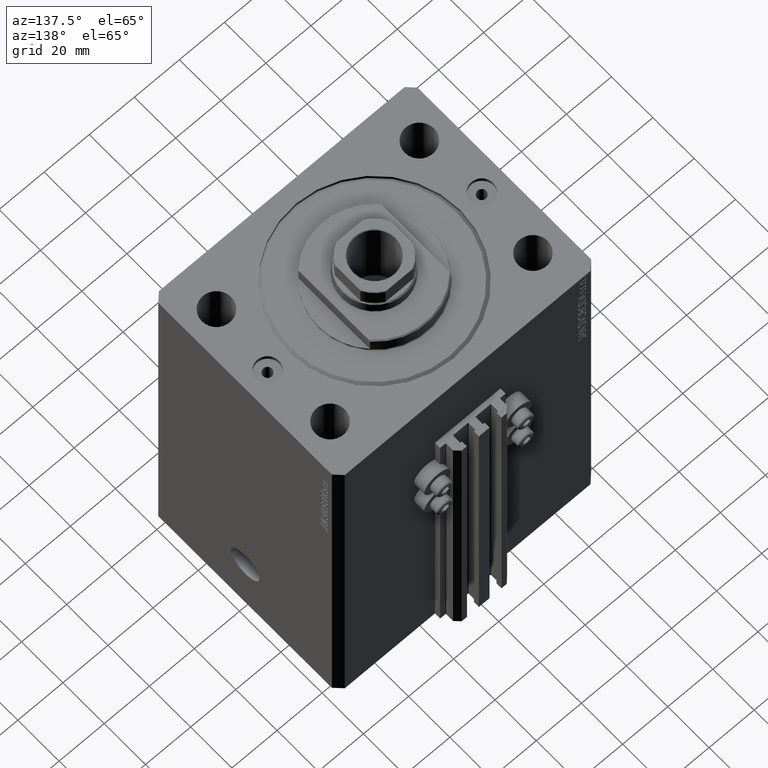
[diagram: clean part render]
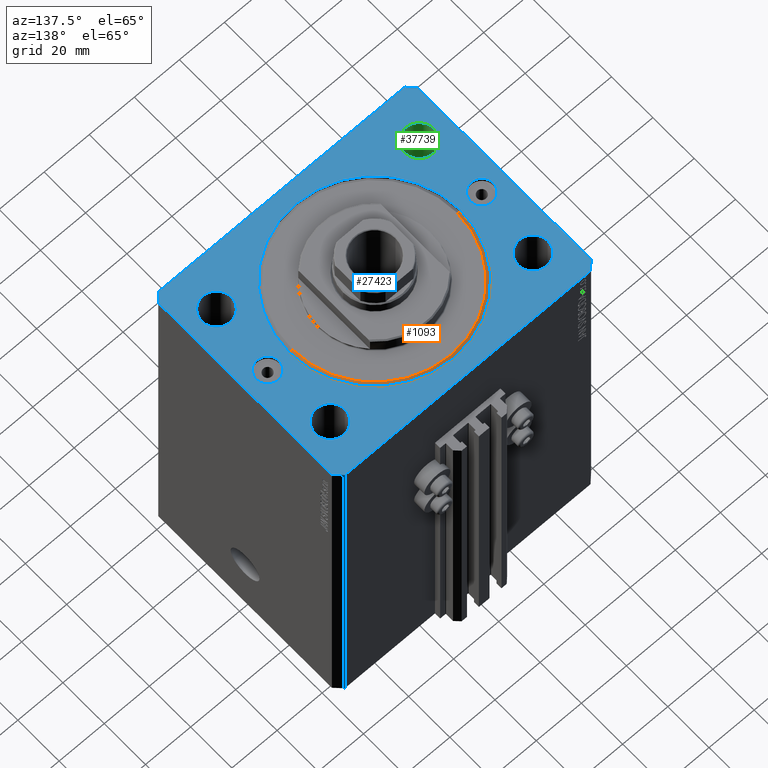
[diagram: same view with three faces highlighted in distinct colors, each labeled with its STEP entity id]
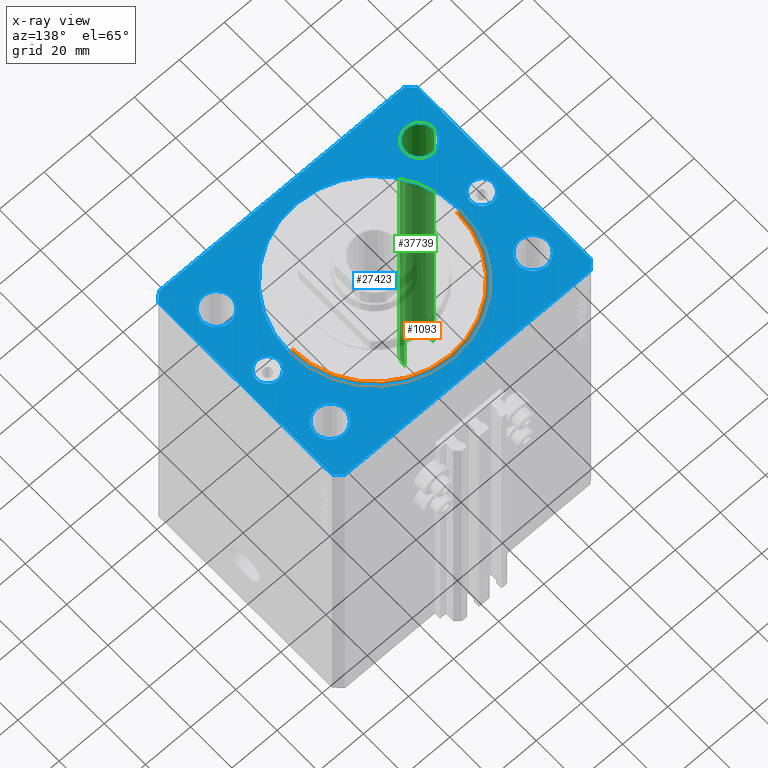
[diagram: x-ray of the same camera — body ghosted, the three highlighted faces saturated]
A machine part, auxiliary view with three faces highlighted in distinct colors.
The next image is the same camera in x-ray (body ghosted, the three faces saturated) — at least one of them is partly hidden behind the body in this view.
Their STEP definitions:

[orange] entity #1093 — the highlighted conical surface has half-angle 45 deg.
#1093 = ADVANCED_FACE ( 'NONE', ( #6289 ), #15598, .T. ) ;
#1545 = LINE ( 'NONE', #23691, #25750 ) ;
#2882 = EDGE_CURVE ( 'NONE', #32371, #16015, #32445, .T. ) ;
#3122 = ORIENTED_EDGE ( 'NONE', *, *, #7338, .F. ) ;
#3654 = CARTESIAN_POINT ( 'NONE',  ( 0.000000000000000000, 0.000000000000000000, 1.499999999999987566 ) ) ;
#3705 = ORIENTED_EDGE ( 'NONE', *, *, #2882, .F. ) ;
#5900 = DIRECTION ( 'NONE',  ( -0.7071067811865507924, 8.659560562354972301E-17, 0.7071067811865441310 ) ) ;
#6289 = FACE_OUTER_BOUND ( 'NONE', #19420, .T. ) ;
#7338 = EDGE_CURVE ( 'NONE', #9294, #22922, #41621, .T. ) ;
#9294 = VERTEX_POINT ( 'NONE', #18986 ) ;
#9437 = CARTESIAN_POINT ( 'NONE',  ( 0.000000000000000000, 0.000000000000000000, 1.499999999999987566 ) ) ;
#10179 = CARTESIAN_POINT ( 'NONE',  ( -38.00000000000000000, 4.653657836759941152E-15, 1.499999999999987566 ) ) ;
#10868 = CARTESIAN_POINT ( 'NONE',  ( -38.00000000000000000, 0.000000000000000000, 1.499999999999987566 ) ) ;
#12619 = DIRECTION ( 'NONE',  ( -0.000000000000000000, -0.000000000000000000, -1.000000000000000000 ) ) ;
#13279 = LINE ( 'NONE', #10179, #16873 ) ;
#15598 = CONICAL_SURFACE ( 'NONE', #30852, 38.00000000000000000, 0.7853981633974529419 ) ;
#16015 = VERTEX_POINT ( 'NONE', #10868 ) ;
#16061 = DIRECTION ( 'NONE',  ( 0.7071067811865507924, 0.000000000000000000, 0.7071067811865441310 ) ) ;
#16358 = DIRECTION ( 'NONE',  ( -0.000000000000000000, -0.000000000000000000, 1.000000000000000000 ) ) ;
#16873 = VECTOR ( 'NONE', #5900, 1000.000000000000114 ) ;
#18140 = EDGE_CURVE ( 'NONE', #9294, #16015, #13279, .T. ) ;
#18986 = CARTESIAN_POINT ( 'NONE',  ( -36.50000000000000000, 4.561809326823889791E-15, 0.000000000000000000 ) ) ;
#19169 = ORIENTED_EDGE ( 'NONE', *, *, #18140, .T. ) ;
#19420 = EDGE_LOOP ( 'NONE', ( #3122, #19169, #3705, #36980 ) ) ;
#20983 = AXIS2_PLACEMENT_3D ( 'NONE', #9437, #16358, #23513 ) ;
#21299 = DIRECTION ( 'NONE',  ( -0.000000000000000000, -0.000000000000000000, 1.000000000000000000 ) ) ;
#22916 = CARTESIAN_POINT ( 'NONE',  ( 36.50000000000000000, 0.000000000000000000, 0.000000000000000000 ) ) ;
#22922 = VERTEX_POINT ( 'NONE', #22916 ) ;
#23373 = CARTESIAN_POINT ( 'NONE',  ( 0.000000000000000000, 0.000000000000000000, 0.000000000000000000 ) ) ;
#23513 = DIRECTION ( 'NONE',  ( 1.000000000000000000, 0.000000000000000000, 0.000000000000000000 ) ) ;
#23691 = CARTESIAN_POINT ( 'NONE',  ( 38.00000000000000000, 0.000000000000000000, 1.499999999999987566 ) ) ;
#25750 = VECTOR ( 'NONE', #16061, 1000.000000000000114 ) ;
#25767 = CARTESIAN_POINT ( 'NONE',  ( 38.00000000000000000, 4.653657836759941941E-15, 1.499999999999987566 ) ) ;
#30852 = AXIS2_PLACEMENT_3D ( 'NONE', #3654, #21299, #39707 ) ;
#31514 = DIRECTION ( 'NONE',  ( 1.000000000000000000, 0.000000000000000000, 0.000000000000000000 ) ) ;
#31975 = EDGE_CURVE ( 'NONE', #22922, #32371, #1545, .T. ) ;
#32371 = VERTEX_POINT ( 'NONE', #25767 ) ;
#32445 = CIRCLE ( 'NONE', #20983, 38.00000000000000000 ) ;
#36980 = ORIENTED_EDGE ( 'NONE', *, *, #31975, .F. ) ;
#39707 = DIRECTION ( 'NONE',  ( 1.000000000000000000, 0.000000000000000000, 0.000000000000000000 ) ) ;
#41621 = CIRCLE ( 'NONE', #46987, 36.50000000000000000 ) ;
#46987 = AXIS2_PLACEMENT_3D ( 'NONE', #23373, #12619, #31514 ) ;

[blue] entity #27423 — the highlighted planar face has unit normal (0, 0, 1).
#260 = CARTESIAN_POINT ( 'NONE',  ( 54.50000000000000711, -44.99999999999998579, 0.000000000000000000 ) ) ;
#617 = CARTESIAN_POINT ( 'NONE',  ( 57.50000000000055422, 41.99999999999997868, 0.000000000000000000 ) ) ;
#871 = CARTESIAN_POINT ( 'NONE',  ( -47.50000000000000000, 0.000000000000000000, 0.000000000000000000 ) ) ;
#1354 = CIRCLE ( 'NONE', #24937, 4.999999999999997335 ) ;
#1471 = EDGE_CURVE ( 'NONE', #11173, #12547, #32706, .T. ) ;
#1954 = EDGE_LOOP ( 'NONE', ( #24005, #30997, #29475, #32439, #8740, #9249, #38510, #23436 ) ) ;
#2252 = FACE_BOUND ( 'NONE', #14986, .T. ) ;
#3496 = DIRECTION ( 'NONE',  ( -0.7071067811865483499, -0.7071067811865466846, 0.000000000000000000 ) ) ;
#3679 = EDGE_LOOP ( 'NONE', ( #5912, #40701 ) ) ;
#3830 = VERTEX_POINT ( 'NONE', #35737 ) ;
#3963 = CIRCLE ( 'NONE', #37524, 6.499999999999999112 ) ;
#4005 = VERTEX_POINT ( 'NONE', #8004 ) ;
#4127 = AXIS2_PLACEMENT_3D ( 'NONE', #17743, #13696, #35442 ) ;
#4447 = CARTESIAN_POINT ( 'NONE',  ( -42.50000000000000000, 0.000000000000000000, 0.000000000000000000 ) ) ;
#4514 = CARTESIAN_POINT ( 'NONE',  ( 57.50000000000055422, 41.99999999999997868, 0.000000000000000000 ) ) ;
#4573 = CARTESIAN_POINT ( 'NONE',  ( -38.50000000000000000, 27.49999999999999645, 0.000000000000000000 ) ) ;
#4659 = VERTEX_POINT ( 'NONE', #4447 ) ;
#4693 = DIRECTION ( 'NONE',  ( 0.000000000000000000, 0.000000000000000000, 1.000000000000000000 ) ) ;
#4840 = DIRECTION ( 'NONE',  ( 0.000000000000000000, 0.000000000000000000, 1.000000000000000000 ) ) ;
#5227 = EDGE_CURVE ( 'NONE', #34583, #4005, #45474, .T. ) ;
#5359 = DIRECTION ( 'NONE',  ( 0.000000000000000000, 0.000000000000000000, 1.000000000000000000 ) ) ;
#5388 = CARTESIAN_POINT ( 'NONE',  ( -44.99999999999998579, -27.50000000000000355, 0.000000000000000000 ) ) ;
#5861 = ORIENTED_EDGE ( 'NONE', *, *, #35315, .F. ) ;
#5912 = ORIENTED_EDGE ( 'NONE', *, *, #9299, .F. ) ;
#6148 = ORIENTED_EDGE ( 'NONE', *, *, #32860, .F. ) ;
#6475 = CARTESIAN_POINT ( 'NONE',  ( 38.50000000000000000, 27.49999999999999289, 0.000000000000000000 ) ) ;
#6926 = CARTESIAN_POINT ( 'NONE',  ( 57.50000000000000711, -41.99999999999998579, 0.000000000000000000 ) ) ;
#7218 = DIRECTION ( 'NONE',  ( 1.000000000000000000, 0.000000000000000000, 0.000000000000000000 ) ) ;
#7731 = CIRCLE ( 'NONE', #25269, 38.00000000000000000 ) ;
#8004 = CARTESIAN_POINT ( 'NONE',  ( 42.50000000000000000, 6.123233995736762338E-16, 0.000000000000000000 ) ) ;
#8076 = DIRECTION ( 'NONE',  ( 0.000000000000000000, 0.000000000000000000, 1.000000000000000000 ) ) ;
#8198 = CARTESIAN_POINT ( 'NONE',  ( -51.50000000000000000, 27.49999999999999645, 0.000000000000000000 ) ) ;
#8244 = DIRECTION ( 'NONE',  ( 1.000000000000000000, 0.000000000000000000, 0.000000000000000000 ) ) ;
#8329 = CIRCLE ( 'NONE', #29048, 38.00000000000000000 ) ;
#8573 = CARTESIAN_POINT ( 'NONE',  ( -38.00000000000000000, 4.653657836759941941E-15, 0.000000000000000000 ) ) ;
#8740 = ORIENTED_EDGE ( 'NONE', *, *, #31580, .T. ) ;
#8788 = LINE ( 'NONE', #39840, #16939 ) ;
#8961 = ORIENTED_EDGE ( 'NONE', *, *, #46390, .F. ) ;
#9249 = ORIENTED_EDGE ( 'NONE', *, *, #1471, .T. ) ;
#9299 = EDGE_CURVE ( 'NONE', #39109, #39535, #22580, .T. ) ;
#9390 = FACE_BOUND ( 'NONE', #43974, .T. ) ;
#9433 = VERTEX_POINT ( 'NONE', #4573 ) ;
#9517 = LINE ( 'NONE', #46341, #19783 ) ;
#9625 = FACE_BOUND ( 'NONE', #9767, .T. ) ;
#9767 = EDGE_LOOP ( 'NONE', ( #14653, #8961 ) ) ;
#10392 = VERTEX_POINT ( 'NONE', #35705 ) ;
#10570 = CARTESIAN_POINT ( 'NONE',  ( 0.000000000000000000, 0.000000000000000000, 0.000000000000000000 ) ) ;
#10778 = CARTESIAN_POINT ( 'NONE',  ( 57.50000000000000711, -41.99999999999998579, 0.000000000000000000 ) ) ;
#10805 = DIRECTION ( 'NONE',  ( 1.000000000000000000, 0.000000000000000000, 0.000000000000000000 ) ) ;
#11173 = VERTEX_POINT ( 'NONE', #12310 ) ;
#11377 = VERTEX_POINT ( 'NONE', #617 ) ;
#11646 = ORIENTED_EDGE ( 'NONE', *, *, #39673, .F. ) ;
#11678 = CARTESIAN_POINT ( 'NONE',  ( 44.99999999999998579, -27.50000000000000355, 0.000000000000000000 ) ) ;
#11789 = EDGE_CURVE ( 'NONE', #4005, #34583, #1354, .T. ) ;
#12038 = DIRECTION ( 'NONE',  ( 0.000000000000000000, 0.000000000000000000, 1.000000000000000000 ) ) ;
#12086 = DIRECTION ( 'NONE',  ( 0.000000000000000000, 0.000000000000000000, 1.000000000000000000 ) ) ;
#12121 = CARTESIAN_POINT ( 'NONE',  ( 0.000000000000000000, 0.000000000000000000, 0.000000000000000000 ) ) ;
#12310 = CARTESIAN_POINT ( 'NONE',  ( 54.50000000000000711, -44.99999999999998579, 0.000000000000000000 ) ) ;
#12495 = FACE_BOUND ( 'NONE', #24103, .T. ) ;
#12547 = VERTEX_POINT ( 'NONE', #6926 ) ;
#12719 = AXIS2_PLACEMENT_3D ( 'NONE', #11678, #32965, #37479 ) ;
#12724 = FACE_OUTER_BOUND ( 'NONE', #1954, .T. ) ;
#13038 = DIRECTION ( 'NONE',  ( 0.000000000000000000, 0.000000000000000000, 1.000000000000000000 ) ) ;
#13080 = EDGE_CURVE ( 'NONE', #20600, #9433, #23429, .T. ) ;
#13100 = VECTOR ( 'NONE', #32757, 1000.000000000000000 ) ;
#13193 = EDGE_CURVE ( 'NONE', #11377, #46303, #43724, .T. ) ;
#13456 = CARTESIAN_POINT ( 'NONE',  ( -44.99999999999998579, -27.50000000000000355, 0.000000000000000000 ) ) ;
#13696 = DIRECTION ( 'NONE',  ( 0.000000000000000000, 0.000000000000000000, 1.000000000000000000 ) ) ;
#13823 = CIRCLE ( 'NONE', #20682, 6.499999999999999112 ) ;
#14546 = DIRECTION ( 'NONE',  ( 0.7071067811865483499, 0.7071067811865466846, 0.000000000000000000 ) ) ;
#14653 = ORIENTED_EDGE ( 'NONE', *, *, #42385, .F. ) ;
#14838 = DIRECTION ( 'NONE',  ( 0.000000000000000000, 0.000000000000000000, 1.000000000000000000 ) ) ;
#14986 = EDGE_LOOP ( 'NONE', ( #11646, #42813 ) ) ;
#15179 = AXIS2_PLACEMENT_3D ( 'NONE', #871, #12038, #26852 ) ;
#15628 = CARTESIAN_POINT ( 'NONE',  ( -57.49999999999998579, 42.00000000000000711, 0.000000000000000000 ) ) ;
#15895 = DIRECTION ( 'NONE',  ( 1.000000000000000000, 0.000000000000000000, 0.000000000000000000 ) ) ;
#16072 = FACE_BOUND ( 'NONE', #17686, .T. ) ;
#16616 = CARTESIAN_POINT ( 'NONE',  ( 44.99999999999998579, -27.50000000000000355, 0.000000000000000000 ) ) ;
#16930 = ORIENTED_EDGE ( 'NONE', *, *, #18196, .F. ) ;
#16939 = VECTOR ( 'NONE', #28135, 1000.000000000000000 ) ;
#17095 = DIRECTION ( 'NONE',  ( 1.000000000000000000, 0.000000000000000000, 0.000000000000000000 ) ) ;
#17378 = AXIS2_PLACEMENT_3D ( 'NONE', #18418, #14838, #29417 ) ;
#17397 = CARTESIAN_POINT ( 'NONE',  ( -57.49999999999998579, 42.00000000000000711, 0.000000000000000000 ) ) ;
#17686 = EDGE_LOOP ( 'NONE', ( #5861, #6148 ) ) ;
#17743 = CARTESIAN_POINT ( 'NONE',  ( 45.00000000000000000, 27.49999999999999289, 0.000000000000000000 ) ) ;
#17989 = CARTESIAN_POINT ( 'NONE',  ( 47.50000000000000000, 0.000000000000000000, 0.000000000000000000 ) ) ;
#18157 = CIRCLE ( 'NONE', #21935, 4.999999999999997335 ) ;
#18185 = EDGE_LOOP ( 'NONE', ( #16930, #21818 ) ) ;
#18196 = EDGE_CURVE ( 'NONE', #40280, #39150, #13823, .T. ) ;
#18418 = CARTESIAN_POINT ( 'NONE',  ( -45.00000000000000000, 27.49999999999999645, 0.000000000000000000 ) ) ;
#18491 = CARTESIAN_POINT ( 'NONE',  ( -54.49999999999999289, 45.00000000000000000, 0.000000000000000000 ) ) ;
#19057 = CIRCLE ( 'NONE', #29753, 6.499999999999999112 ) ;
#19270 = EDGE_CURVE ( 'NONE', #12547, #11377, #40163, .T. ) ;
#19644 = EDGE_CURVE ( 'NONE', #9433, #20600, #3963, .T. ) ;
#19783 = VECTOR ( 'NONE', #20762, 1000.000000000000114 ) ;
#19899 = DIRECTION ( 'NONE',  ( 1.000000000000000000, 0.000000000000000000, -0.000000000000000000 ) ) ;
#19915 = AXIS2_PLACEMENT_3D ( 'NONE', #13456, #12086, #15895 ) ;
#20097 = CARTESIAN_POINT ( 'NONE',  ( -51.49999999999998579, -27.50000000000000355, 0.000000000000000000 ) ) ;
#20182 = VECTOR ( 'NONE', #14546, 1000.000000000000000 ) ;
#20497 = ORIENTED_EDGE ( 'NONE', *, *, #11789, .T. ) ;
#20600 = VERTEX_POINT ( 'NONE', #8198 ) ;
#20682 = AXIS2_PLACEMENT_3D ( 'NONE', #16616, #13038, #17095 ) ;
#20762 = DIRECTION ( 'NONE',  ( 0.7071067811865491270, -0.7071067811865459074, 0.000000000000000000 ) ) ;
#21320 = DIRECTION ( 'NONE',  ( 0.000000000000000000, 0.000000000000000000, 1.000000000000000000 ) ) ;
#21818 = ORIENTED_EDGE ( 'NONE', *, *, #29751, .F. ) ;
#21889 = CARTESIAN_POINT ( 'NONE',  ( -57.50000000000000711, -42.00000000000000711, 0.000000000000000000 ) ) ;
#21935 = AXIS2_PLACEMENT_3D ( 'NONE', #38487, #4840, #45671 ) ;
#22282 = CARTESIAN_POINT ( 'NONE',  ( 38.49999999999998579, -27.50000000000000355, 0.000000000000000000 ) ) ;
#22580 = CIRCLE ( 'NONE', #37093, 6.499999999999999112 ) ;
#22798 = DIRECTION ( 'NONE',  ( 1.000000000000000000, 0.000000000000000000, 0.000000000000000000 ) ) ;
#23429 = CIRCLE ( 'NONE', #17378, 6.499999999999999112 ) ;
#23436 = ORIENTED_EDGE ( 'NONE', *, *, #13193, .T. ) ;
#23492 = DIRECTION ( 'NONE',  ( -2.478176394252581141E-16, -1.000000000000000000, 0.000000000000000000 ) ) ;
#24005 = ORIENTED_EDGE ( 'NONE', *, *, #26151, .T. ) ;
#24103 = EDGE_LOOP ( 'NONE', ( #46949, #20497 ) ) ;
#24219 = VECTOR ( 'NONE', #43485, 1000.000000000000000 ) ;
#24387 = VERTEX_POINT ( 'NONE', #17397 ) ;
#24937 = AXIS2_PLACEMENT_3D ( 'NONE', #17989, #46474, #47177 ) ;
#25269 = AXIS2_PLACEMENT_3D ( 'NONE', #10570, #21320, #10805 ) ;
#25702 = LINE ( 'NONE', #40298, #30308 ) ;
#26151 = EDGE_CURVE ( 'NONE', #46303, #10392, #8788, .T. ) ;
#26250 = CARTESIAN_POINT ( 'NONE',  ( 38.00000000000000000, 0.000000000000000000, 0.000000000000000000 ) ) ;
#26695 = DIRECTION ( 'NONE',  ( 0.000000000000000000, 0.000000000000000000, 1.000000000000000000 ) ) ;
#26852 = DIRECTION ( 'NONE',  ( 1.000000000000000000, 0.000000000000000000, 0.000000000000000000 ) ) ;
#27423 = ADVANCED_FACE ( 'NONE', ( #12724, #9390, #38316, #34942, #9625, #2252, #16072, #12495 ), #45266, .T. ) ;
#27424 = VECTOR ( 'NONE', #3496, 1000.000000000000000 ) ;
#27813 = CARTESIAN_POINT ( 'NONE',  ( -38.49999999999998579, -27.50000000000000355, 0.000000000000000000 ) ) ;
#28135 = DIRECTION ( 'NONE',  ( -1.000000000000000000, -2.546383084002638829E-16, 0.000000000000000000 ) ) ;
#28555 = LINE ( 'NONE', #18491, #27424 ) ;
#28560 = EDGE_CURVE ( 'NONE', #39535, #39109, #29273, .T. ) ;
#28775 = CIRCLE ( 'NONE', #12719, 6.499999999999999112 ) ;
#29048 = AXIS2_PLACEMENT_3D ( 'NONE', #12121, #26695, #40584 ) ;
#29273 = CIRCLE ( 'NONE', #4127, 6.499999999999999112 ) ;
#29354 = CARTESIAN_POINT ( 'NONE',  ( -45.00000000000000000, 27.49999999999999645, 0.000000000000000000 ) ) ;
#29417 = DIRECTION ( 'NONE',  ( 1.000000000000000000, 0.000000000000000000, 0.000000000000000000 ) ) ;
#29475 = ORIENTED_EDGE ( 'NONE', *, *, #42286, .T. ) ;
#29583 = DIRECTION ( 'NONE',  ( 1.000000000000000000, 0.000000000000000000, 0.000000000000000000 ) ) ;
#29751 = EDGE_CURVE ( 'NONE', #39150, #40280, #28775, .T. ) ;
#29753 = AXIS2_PLACEMENT_3D ( 'NONE', #5388, #41702, #8244 ) ;
#29836 = VERTEX_POINT ( 'NONE', #41323 ) ;
#30308 = VECTOR ( 'NONE', #41009, 1000.000000000000000 ) ;
#30997 = ORIENTED_EDGE ( 'NONE', *, *, #40991, .T. ) ;
#31369 = CARTESIAN_POINT ( 'NONE',  ( 0.000000000000000000, 0.000000000000000000, 0.000000000000000000 ) ) ;
#31580 = EDGE_CURVE ( 'NONE', #29836, #11173, #25702, .T. ) ;
#31592 = ORIENTED_EDGE ( 'NONE', *, *, #13080, .F. ) ;
#31646 = CARTESIAN_POINT ( 'NONE',  ( 51.50000000000000000, 27.49999999999999289, 0.000000000000000000 ) ) ;
#32058 = CARTESIAN_POINT ( 'NONE',  ( 47.50000000000000000, 0.000000000000000000, 0.000000000000000000 ) ) ;
#32152 = CIRCLE ( 'NONE', #19915, 6.499999999999999112 ) ;
#32439 = ORIENTED_EDGE ( 'NONE', *, *, #37074, .T. ) ;
#32706 = LINE ( 'NONE', #260, #20182 ) ;
#32757 = DIRECTION ( 'NONE',  ( 6.443258625056715108E-15, 1.000000000000000000, 0.000000000000000000 ) ) ;
#32860 = EDGE_CURVE ( 'NONE', #3830, #4659, #18157, .T. ) ;
#32965 = DIRECTION ( 'NONE',  ( 0.000000000000000000, 0.000000000000000000, 1.000000000000000000 ) ) ;
#33182 = VERTEX_POINT ( 'NONE', #8573 ) ;
#34583 = VERTEX_POINT ( 'NONE', #44280 ) ;
#34766 = VERTEX_POINT ( 'NONE', #20097 ) ;
#34942 = FACE_BOUND ( 'NONE', #18185, .T. ) ;
#35315 = EDGE_CURVE ( 'NONE', #4659, #3830, #37284, .T. ) ;
#35442 = DIRECTION ( 'NONE',  ( 1.000000000000000000, 0.000000000000000000, 0.000000000000000000 ) ) ;
#35705 = CARTESIAN_POINT ( 'NONE',  ( -54.49999999999999289, 45.00000000000000000, 0.000000000000000000 ) ) ;
#35737 = CARTESIAN_POINT ( 'NONE',  ( -52.50000000000000000, 6.123233995736762338E-16, 0.000000000000000000 ) ) ;
#37074 = EDGE_CURVE ( 'NONE', #46901, #29836, #9517, .T. ) ;
#37093 = AXIS2_PLACEMENT_3D ( 'NONE', #41935, #4693, #22798 ) ;
#37284 = CIRCLE ( 'NONE', #15179, 4.999999999999997335 ) ;
#37479 = DIRECTION ( 'NONE',  ( 1.000000000000000000, 0.000000000000000000, 0.000000000000000000 ) ) ;
#37524 = AXIS2_PLACEMENT_3D ( 'NONE', #29354, #8076, #29583 ) ;
#38290 = VERTEX_POINT ( 'NONE', #27813 ) ;
#38316 = FACE_BOUND ( 'NONE', #3679, .T. ) ;
#38487 = CARTESIAN_POINT ( 'NONE',  ( -47.50000000000000000, 0.000000000000000000, 0.000000000000000000 ) ) ;
#38510 = ORIENTED_EDGE ( 'NONE', *, *, #19270, .T. ) ;
#39109 = VERTEX_POINT ( 'NONE', #31646 ) ;
#39150 = VERTEX_POINT ( 'NONE', #22282 ) ;
#39535 = VERTEX_POINT ( 'NONE', #6475 ) ;
#39673 = EDGE_CURVE ( 'NONE', #46791, #33182, #8329, .T. ) ;
#39840 = CARTESIAN_POINT ( 'NONE',  ( 54.50000000000059686, 45.00000000000002842, 0.000000000000000000 ) ) ;
#40083 = CARTESIAN_POINT ( 'NONE',  ( 54.50000000000059686, 45.00000000000002842, 0.000000000000000000 ) ) ;
#40163 = LINE ( 'NONE', #10778, #13100 ) ;
#40280 = VERTEX_POINT ( 'NONE', #40359 ) ;
#40298 = CARTESIAN_POINT ( 'NONE',  ( -54.50000000000000711, -45.00000000000000000, 0.000000000000000000 ) ) ;
#40359 = CARTESIAN_POINT ( 'NONE',  ( 51.49999999999998579, -27.50000000000000355, 0.000000000000000000 ) ) ;
#40584 = DIRECTION ( 'NONE',  ( 1.000000000000000000, 0.000000000000000000, 0.000000000000000000 ) ) ;
#40701 = ORIENTED_EDGE ( 'NONE', *, *, #28560, .F. ) ;
#40991 = EDGE_CURVE ( 'NONE', #10392, #24387, #28555, .T. ) ;
#41009 = DIRECTION ( 'NONE',  ( 1.000000000000000000, 1.273191542001326317E-16, 0.000000000000000000 ) ) ;
#41243 = ORIENTED_EDGE ( 'NONE', *, *, #19644, .F. ) ;
#41323 = CARTESIAN_POINT ( 'NONE',  ( -54.50000000000000711, -45.00000000000000000, 0.000000000000000000 ) ) ;
#41686 = AXIS2_PLACEMENT_3D ( 'NONE', #32058, #46658, #7218 ) ;
#41702 = DIRECTION ( 'NONE',  ( 0.000000000000000000, 0.000000000000000000, 1.000000000000000000 ) ) ;
#41935 = CARTESIAN_POINT ( 'NONE',  ( 45.00000000000000000, 27.49999999999999289, 0.000000000000000000 ) ) ;
#41971 = VECTOR ( 'NONE', #23492, 1000.000000000000000 ) ;
#42286 = EDGE_CURVE ( 'NONE', #24387, #46901, #45056, .T. ) ;
#42385 = EDGE_CURVE ( 'NONE', #38290, #34766, #19057, .T. ) ;
#42813 = ORIENTED_EDGE ( 'NONE', *, *, #45576, .F. ) ;
#43485 = DIRECTION ( 'NONE',  ( -0.7071067811865369146, 0.7071067811865581199, 0.000000000000000000 ) ) ;
#43724 = LINE ( 'NONE', #4514, #24219 ) ;
#43760 = AXIS2_PLACEMENT_3D ( 'NONE', #31369, #5359, #19899 ) ;
#43974 = EDGE_LOOP ( 'NONE', ( #41243, #31592 ) ) ;
#44280 = CARTESIAN_POINT ( 'NONE',  ( 52.50000000000000000, 0.000000000000000000, 0.000000000000000000 ) ) ;
#45056 = LINE ( 'NONE', #15628, #41971 ) ;
#45266 = PLANE ( 'NONE',  #43760 ) ;
#45474 = CIRCLE ( 'NONE', #41686, 4.999999999999997335 ) ;
#45576 = EDGE_CURVE ( 'NONE', #33182, #46791, #7731, .T. ) ;
#45671 = DIRECTION ( 'NONE',  ( 1.000000000000000000, 0.000000000000000000, 0.000000000000000000 ) ) ;
#46303 = VERTEX_POINT ( 'NONE', #40083 ) ;
#46341 = CARTESIAN_POINT ( 'NONE',  ( -57.50000000000000711, -42.00000000000000711, 0.000000000000000000 ) ) ;
#46390 = EDGE_CURVE ( 'NONE', #34766, #38290, #32152, .T. ) ;
#46474 = DIRECTION ( 'NONE',  ( 0.000000000000000000, -0.000000000000000000, -1.000000000000000000 ) ) ;
#46658 = DIRECTION ( 'NONE',  ( 0.000000000000000000, -0.000000000000000000, -1.000000000000000000 ) ) ;
#46791 = VERTEX_POINT ( 'NONE', #26250 ) ;
#46901 = VERTEX_POINT ( 'NONE', #21889 ) ;
#46949 = ORIENTED_EDGE ( 'NONE', *, *, #5227, .T. ) ;
#47177 = DIRECTION ( 'NONE',  ( 1.000000000000000000, 0.000000000000000000, 0.000000000000000000 ) ) ;

[green] entity #37739 — the highlighted cylindrical surface (edge-blend (fillet) strip) has radius 6.5 mm, axis along (0, 0, 1).
#1613 = DIRECTION ( 'NONE',  ( -0.000000000000000000, -0.000000000000000000, -1.000000000000000000 ) ) ;
#3288 = ORIENTED_EDGE ( 'NONE', *, *, #14535, .F. ) ;
#4056 = CIRCLE ( 'NONE', #33793, 6.499999999999999112 ) ;
#7992 = CARTESIAN_POINT ( 'NONE',  ( -51.49999999999998579, -27.50000000000000355, -183.3847763108502420 ) ) ;
#9792 = VERTEX_POINT ( 'NONE', #40820 ) ;
#12086 = DIRECTION ( 'NONE',  ( 0.000000000000000000, 0.000000000000000000, 1.000000000000000000 ) ) ;
#13283 = EDGE_LOOP ( 'NONE', ( #46425, #18722, #23276, #3288 ) ) ;
#13456 = CARTESIAN_POINT ( 'NONE',  ( -44.99999999999998579, -27.50000000000000355, 0.000000000000000000 ) ) ;
#13827 = FACE_OUTER_BOUND ( 'NONE', #13283, .T. ) ;
#14293 = DIRECTION ( 'NONE',  ( 1.000000000000000000, 0.000000000000000000, 0.000000000000000000 ) ) ;
#14535 = EDGE_CURVE ( 'NONE', #9792, #38290, #28139, .T. ) ;
#15604 = DIRECTION ( 'NONE',  ( -0.000000000000000000, -0.000000000000000000, 1.000000000000000000 ) ) ;
#15895 = DIRECTION ( 'NONE',  ( 1.000000000000000000, 0.000000000000000000, 0.000000000000000000 ) ) ;
#17136 = CARTESIAN_POINT ( 'NONE',  ( -38.49999999999998579, -27.50000000000000355, -183.3847763108502420 ) ) ;
#17872 = CYLINDRICAL_SURFACE ( 'NONE', #31282, 6.499999999999999112 ) ;
#18722 = ORIENTED_EDGE ( 'NONE', *, *, #27155, .T. ) ;
#19915 = AXIS2_PLACEMENT_3D ( 'NONE', #13456, #12086, #15895 ) ;
#19964 = DIRECTION ( 'NONE',  ( 1.000000000000000000, 0.000000000000000000, 0.000000000000000000 ) ) ;
#20097 = CARTESIAN_POINT ( 'NONE',  ( -51.49999999999998579, -27.50000000000000355, 0.000000000000000000 ) ) ;
#23005 = LINE ( 'NONE', #7992, #26138 ) ;
#23276 = ORIENTED_EDGE ( 'NONE', *, *, #46390, .T. ) ;
#26138 = VECTOR ( 'NONE', #15604, 1000.000000000000000 ) ;
#27027 = EDGE_CURVE ( 'NONE', #9792, #37762, #4056, .T. ) ;
#27155 = EDGE_CURVE ( 'NONE', #37762, #34766, #23005, .T. ) ;
#27813 = CARTESIAN_POINT ( 'NONE',  ( -38.49999999999998579, -27.50000000000000355, 0.000000000000000000 ) ) ;
#28139 = LINE ( 'NONE', #17136, #37311 ) ;
#28646 = CARTESIAN_POINT ( 'NONE',  ( -51.49999999999998579, -27.50000000000000355, -165.0000000000000000 ) ) ;
#31282 = AXIS2_PLACEMENT_3D ( 'NONE', #32461, #47063, #14293 ) ;
#32152 = CIRCLE ( 'NONE', #19915, 6.499999999999999112 ) ;
#32461 = CARTESIAN_POINT ( 'NONE',  ( -44.99999999999998579, -27.50000000000000355, -183.3847763108502420 ) ) ;
#33793 = AXIS2_PLACEMENT_3D ( 'NONE', #41960, #1613, #19964 ) ;
#34766 = VERTEX_POINT ( 'NONE', #20097 ) ;
#37311 = VECTOR ( 'NONE', #38651, 1000.000000000000000 ) ;
#37739 = ADVANCED_FACE ( 'NONE', ( #13827 ), #17872, .F. ) ;
#37762 = VERTEX_POINT ( 'NONE', #28646 ) ;
#38290 = VERTEX_POINT ( 'NONE', #27813 ) ;
#38651 = DIRECTION ( 'NONE',  ( -0.000000000000000000, -0.000000000000000000, 1.000000000000000000 ) ) ;
#40820 = CARTESIAN_POINT ( 'NONE',  ( -38.49999999999998579, -27.50000000000000355, -165.0000000000000000 ) ) ;
#41960 = CARTESIAN_POINT ( 'NONE',  ( -44.99999999999998579, -27.50000000000000355, -165.0000000000000000 ) ) ;
#46390 = EDGE_CURVE ( 'NONE', #34766, #38290, #32152, .T. ) ;
#46425 = ORIENTED_EDGE ( 'NONE', *, *, #27027, .T. ) ;
#47063 = DIRECTION ( 'NONE',  ( -0.000000000000000000, -0.000000000000000000, 1.000000000000000000 ) ) ;